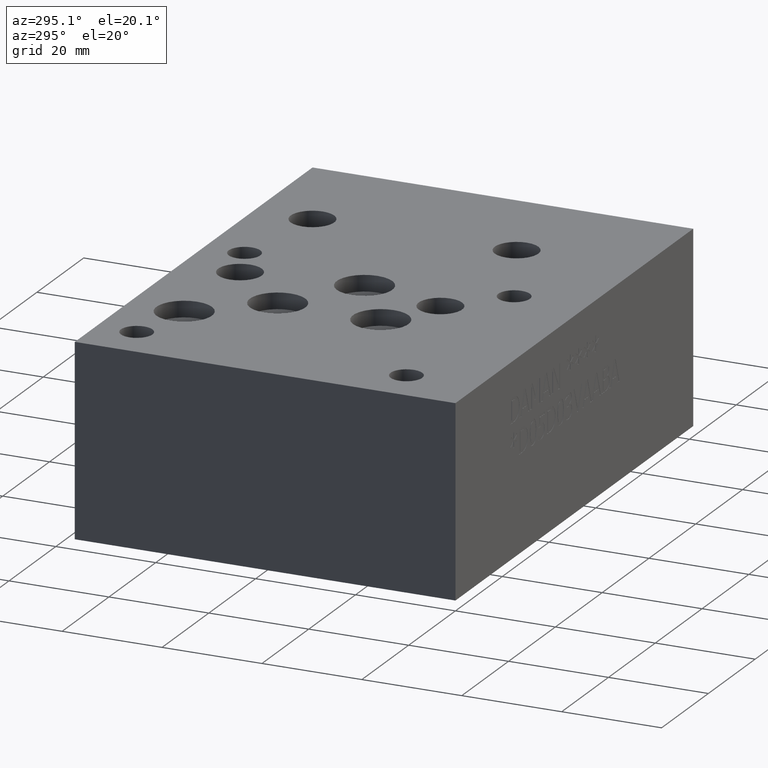
[diagram: clean part render]
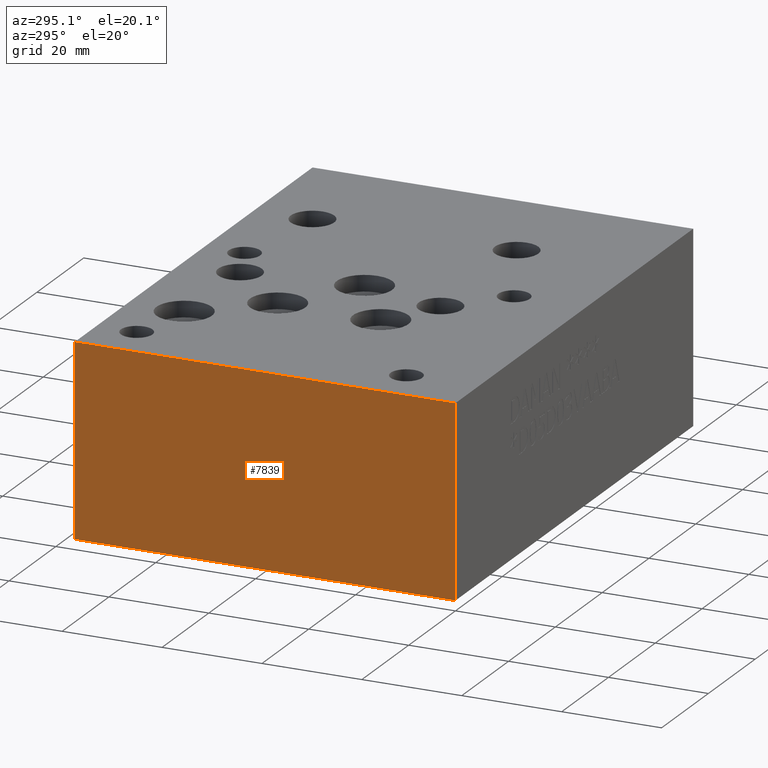
[diagram: same view with one face highlighted and labeled with its STEP entity id]
A machine part, auxiliary view. The second image highlights one B-rep face of the part: STEP entity #7839.
In plain terms, the highlighted planar face has unit normal (-1, 0, 0).
Its self-contained STEP definition (entity closure, byte-faithful):
#875=FACE_OUTER_BOUND('',#1335,.T.);
#1335=EDGE_LOOP('',(#6807,#6808,#6809,#6810));
#1732=LINE('',#10699,#2535);
#2119=LINE('',#13065,#2922);
#2150=LINE('',#13221,#2953);
#2151=LINE('',#13222,#2954);
#2535=VECTOR('',#8884,10.);
#2922=VECTOR('',#9593,10.);
#2953=VECTOR('',#9778,10.);
#2954=VECTOR('',#9779,10.);
#3220=VERTEX_POINT('',#10692);
#3223=VERTEX_POINT('',#10697);
#3617=VERTEX_POINT('',#13064);
#3665=VERTEX_POINT('',#13220);
#4063=EDGE_CURVE('',#3220,#3223,#1732,.T.);
#4648=EDGE_CURVE('',#3617,#3220,#2119,.T.);
#4719=EDGE_CURVE('',#3665,#3223,#2150,.T.);
#4720=EDGE_CURVE('',#3617,#3665,#2151,.T.);
#6807=ORIENTED_EDGE('',*,*,#4648,.T.);
#6808=ORIENTED_EDGE('',*,*,#4063,.T.);
#6809=ORIENTED_EDGE('',*,*,#4719,.F.);
#6810=ORIENTED_EDGE('',*,*,#4720,.F.);
#7100=PLANE('',#8231);
#7839=ADVANCED_FACE('',(#875),#7100,.T.);
#8231=AXIS2_PLACEMENT_3D('',#13219,#9776,#9777);
#8884=DIRECTION('',(0.,0.,1.));
#9593=DIRECTION('',(0.,-1.,0.));
#9776=DIRECTION('center_axis',(-1.,0.,0.));
#9777=DIRECTION('ref_axis',(0.,-1.,0.));
#9778=DIRECTION('',(0.,-1.,0.));
#9779=DIRECTION('',(0.,0.,1.));
#10692=CARTESIAN_POINT('',(0.,0.,0.));
#10697=CARTESIAN_POINT('',(0.,0.,38.1));
#10699=CARTESIAN_POINT('',(0.,0.,0.));
#13064=CARTESIAN_POINT('',(0.,76.2,0.));
#13065=CARTESIAN_POINT('',(0.,76.2,0.));
#13219=CARTESIAN_POINT('Origin',(0.,76.2,0.));
#13220=CARTESIAN_POINT('',(0.,76.2,38.1));
#13221=CARTESIAN_POINT('',(0.,76.2,38.1));
#13222=CARTESIAN_POINT('',(0.,76.2,0.));